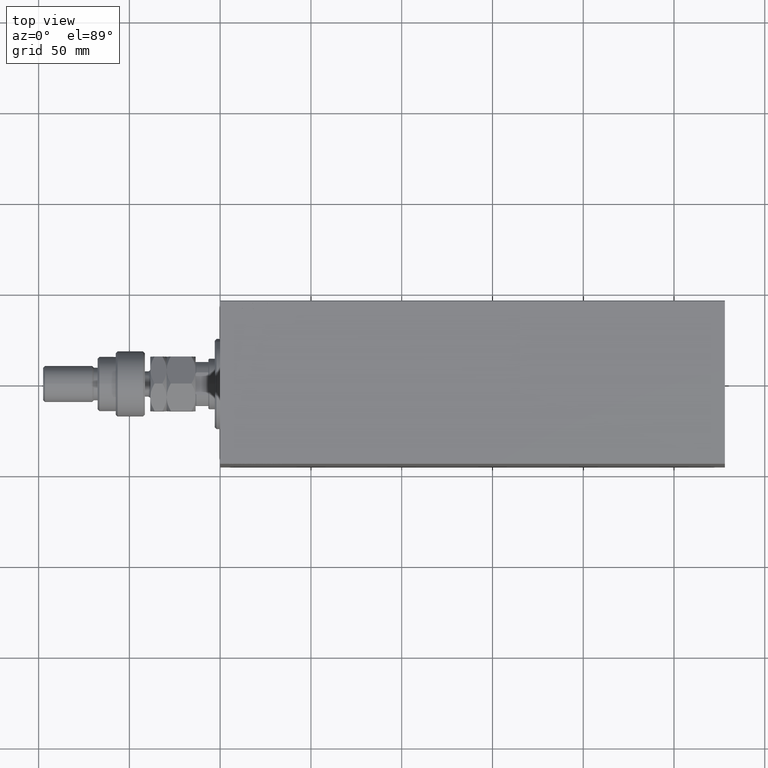
[diagram: clean part render]
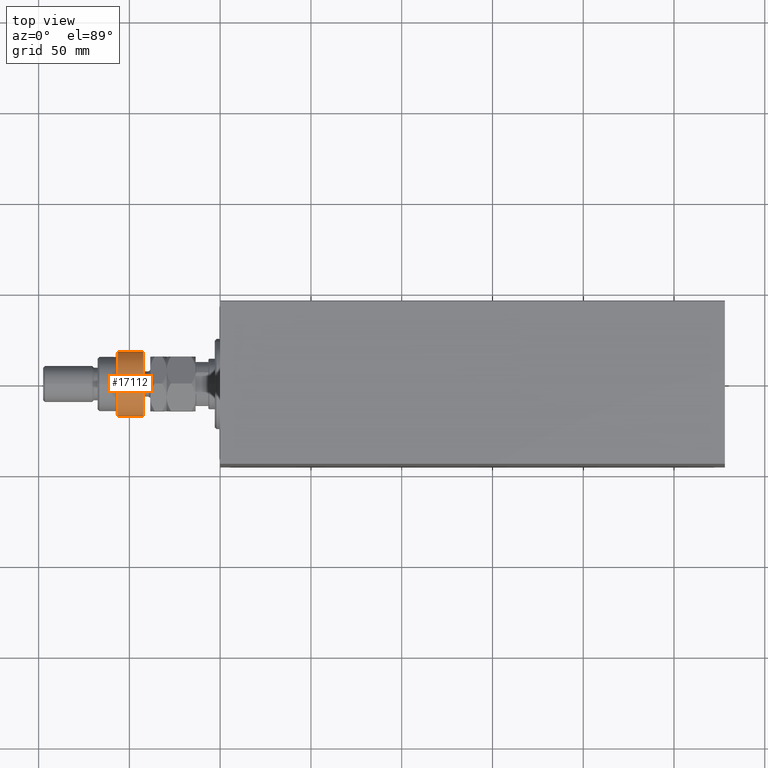
[diagram: same view with one face highlighted and labeled with its STEP entity id]
A machine part, top view. The second image highlights one B-rep face of the part: STEP entity #17112.
In plain terms, the highlighted cylindrical surface (edge-blend (fillet) strip) has radius 18 mm, axis along (1, -0, -0).
Its self-contained STEP definition (entity closure, byte-faithful):
#491 = CYLINDRICAL_SURFACE ( 'NONE', #28523, 18.00000000000000000 ) ;
#775 = CIRCLE ( 'NONE', #43715, 18.00000000000000000 ) ;
#1331 = DIRECTION ( 'NONE',  ( 1.000000000000000000, 0.000000000000000000, 0.000000000000000000 ) ) ;
#2603 = LINE ( 'NONE', #32099, #30736 ) ;
#4881 = DIRECTION ( 'NONE',  ( -0.000000000000000000, -0.000000000000000000, 1.000000000000000000 ) ) ;
#4999 = CARTESIAN_POINT ( 'NONE',  ( -16.36306817195357155, -7.500000000000000000, 14.99999999999999645 ) ) ;
#5079 = CARTESIAN_POINT ( 'NONE',  ( -16.36306817195357155, 7.500000000000000000, 1.000000000000011324 ) ) ;
#5883 = DIRECTION ( 'NONE',  ( 0.000000000000000000, 0.000000000000000000, -1.000000000000000000 ) ) ;
#9291 = EDGE_LOOP ( 'NONE', ( #38707, #37837, #13983, #26464, #43824 ) ) ;
#13983 = ORIENTED_EDGE ( 'NONE', *, *, #43292, .T. ) ;
#14643 = CARTESIAN_POINT ( 'NONE',  ( -16.36306817195357155, 7.500000000000000000, 14.99999999999999645 ) ) ;
#14897 = VECTOR ( 'NONE', #29435, 1000.000000000000000 ) ;
#15549 = DIRECTION ( 'NONE',  ( 1.000000000000000000, 0.000000000000000000, 0.000000000000000000 ) ) ;
#15584 = VERTEX_POINT ( 'NONE', #36912 ) ;
#16279 = CARTESIAN_POINT ( 'NONE',  ( 0.000000000000000000, 0.000000000000000000, 14.99999999999999645 ) ) ;
#16501 = AXIS2_PLACEMENT_3D ( 'NONE', #26419, #30190, #15549 ) ;
#17112 = ADVANCED_FACE ( 'NONE', ( #33080 ), #491, .T. ) ;
#18084 = EDGE_CURVE ( 'NONE', #35791, #44992, #2603, .T. ) ;
#21751 = EDGE_CURVE ( 'NONE', #15584, #31374, #45865, .T. ) ;
#22219 = CARTESIAN_POINT ( 'NONE',  ( 0.000000000000000000, 0.000000000000000000, 16.00000000000000000 ) ) ;
#25436 = LINE ( 'NONE', #32270, #14897 ) ;
#26419 = CARTESIAN_POINT ( 'NONE',  ( 0.000000000000000000, 0.000000000000000000, 1.000000000000011324 ) ) ;
#26464 = ORIENTED_EDGE ( 'NONE', *, *, #21751, .T. ) ;
#26823 = EDGE_CURVE ( 'NONE', #31374, #44992, #775, .T. ) ;
#27629 = CARTESIAN_POINT ( 'NONE',  ( 18.00000000000000000, 0.000000000000000000, 1.000000000000011324 ) ) ;
#28116 = CIRCLE ( 'NONE', #28858, 18.00000000000000000 ) ;
#28523 = AXIS2_PLACEMENT_3D ( 'NONE', #22219, #36591, #40596 ) ;
#28858 = AXIS2_PLACEMENT_3D ( 'NONE', #16279, #5883, #44811 ) ;
#29435 = DIRECTION ( 'NONE',  ( -0.000000000000000000, -0.000000000000000000, -1.000000000000000000 ) ) ;
#30190 = DIRECTION ( 'NONE',  ( -0.000000000000000000, -0.000000000000000000, 1.000000000000000000 ) ) ;
#30736 = VECTOR ( 'NONE', #35393, 1000.000000000000000 ) ;
#31374 = VERTEX_POINT ( 'NONE', #27629 ) ;
#32099 = CARTESIAN_POINT ( 'NONE',  ( -16.36306817195357155, 7.500000000000000000, 17.50000000000000000 ) ) ;
#32270 = CARTESIAN_POINT ( 'NONE',  ( -16.36306817195357155, -7.500000000000000000, 17.50000000000000000 ) ) ;
#33080 = FACE_OUTER_BOUND ( 'NONE', #9291, .T. ) ;
#33180 = VERTEX_POINT ( 'NONE', #4999 ) ;
#35393 = DIRECTION ( 'NONE',  ( -0.000000000000000000, -0.000000000000000000, -1.000000000000000000 ) ) ;
#35791 = VERTEX_POINT ( 'NONE', #14643 ) ;
#35835 = EDGE_CURVE ( 'NONE', #35791, #33180, #28116, .T. ) ;
#36591 = DIRECTION ( 'NONE',  ( -0.000000000000000000, -0.000000000000000000, -1.000000000000000000 ) ) ;
#36912 = CARTESIAN_POINT ( 'NONE',  ( -16.36306817195357155, -7.500000000000000000, 1.000000000000011324 ) ) ;
#37199 = CARTESIAN_POINT ( 'NONE',  ( 0.000000000000000000, 0.000000000000000000, 1.000000000000011324 ) ) ;
#37837 = ORIENTED_EDGE ( 'NONE', *, *, #35835, .T. ) ;
#38707 = ORIENTED_EDGE ( 'NONE', *, *, #18084, .F. ) ;
#40596 = DIRECTION ( 'NONE',  ( -1.000000000000000000, 0.000000000000000000, 0.000000000000000000 ) ) ;
#43292 = EDGE_CURVE ( 'NONE', #33180, #15584, #25436, .T. ) ;
#43715 = AXIS2_PLACEMENT_3D ( 'NONE', #37199, #4881, #1331 ) ;
#43824 = ORIENTED_EDGE ( 'NONE', *, *, #26823, .T. ) ;
#44811 = DIRECTION ( 'NONE',  ( 1.000000000000000000, 0.000000000000000000, 0.000000000000000000 ) ) ;
#44992 = VERTEX_POINT ( 'NONE', #5079 ) ;
#45865 = CIRCLE ( 'NONE', #16501, 18.00000000000000000 ) ;